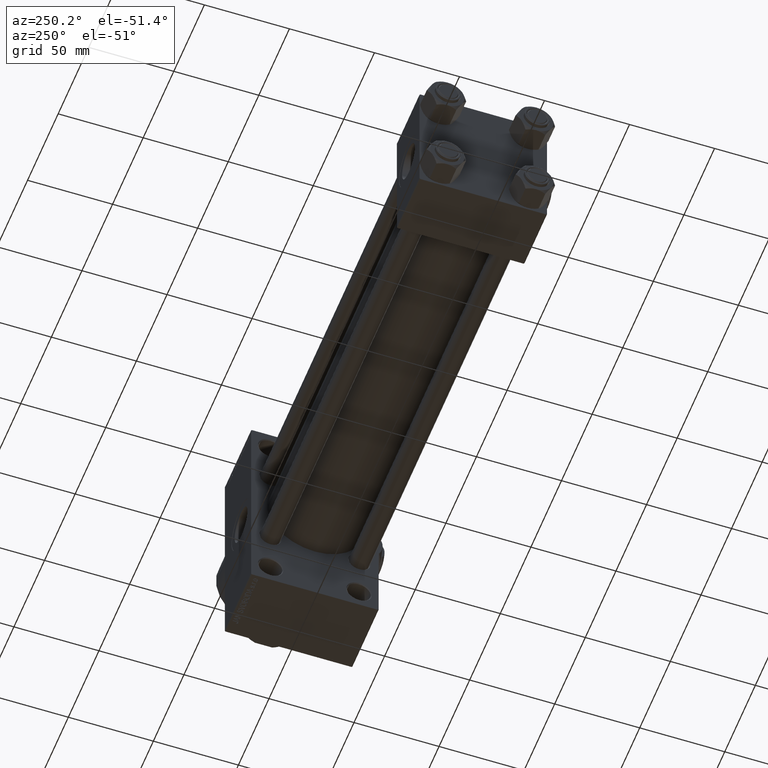
[diagram: clean part render]
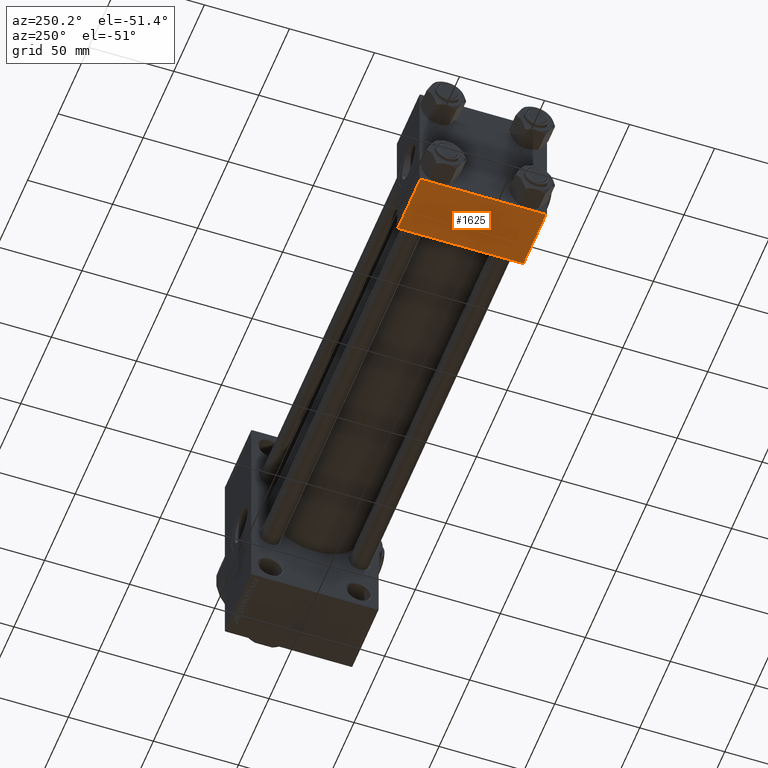
[diagram: same view with one face highlighted and labeled with its STEP entity id]
A machine part, auxiliary view. The second image highlights one B-rep face of the part: STEP entity #1625.
In plain terms, the highlighted planar face has unit normal (0, 0, -1).
Its self-contained STEP definition (entity closure, byte-faithful):
#1467 = DIRECTION ( 'NONE',  ( -1.000000000000000000, 0.000000000000000000, 0.000000000000000000 ) ) ;
#1611 = CARTESIAN_POINT ( 'NONE',  ( 37.00000000000000000, -37.00000000000002132, -37.50000000000000711 ) ) ;
#1625 = ADVANCED_FACE ( 'NONE', ( #41546 ), #21627, .T. ) ;
#2283 = CARTESIAN_POINT ( 'NONE',  ( 0.000000000000000000, -37.00000000000002132, -37.50000000000000711 ) ) ;
#2845 = LINE ( 'NONE', #14538, #40538 ) ;
#3152 = VERTEX_POINT ( 'NONE', #19880 ) ;
#6434 = ORIENTED_EDGE ( 'NONE', *, *, #45750, .T. ) ;
#9660 = ORIENTED_EDGE ( 'NONE', *, *, #24169, .T. ) ;
#10896 = DIRECTION ( 'NONE',  ( 0.000000000000000000, 1.000000000000000000, 9.251858538542972814E-17 ) ) ;
#12129 = VERTEX_POINT ( 'NONE', #1611 ) ;
#12333 = EDGE_LOOP ( 'NONE', ( #34928, #9660, #6434, #35766 ) ) ;
#12849 = LINE ( 'NONE', #48159, #13802 ) ;
#13802 = VECTOR ( 'NONE', #41182, 1000.000000000000000 ) ;
#13817 = DIRECTION ( 'NONE',  ( 0.000000000000000000, -1.000000000000000000, -9.251858538542972814E-17 ) ) ;
#14538 = CARTESIAN_POINT ( 'NONE',  ( 37.00000000000000000, 36.99999999999997868, -37.50000000000000000 ) ) ;
#15075 = VERTEX_POINT ( 'NONE', #2283 ) ;
#18046 = DIRECTION ( 'NONE',  ( 1.000000000000000000, 0.000000000000000000, 0.000000000000000000 ) ) ;
#19880 = CARTESIAN_POINT ( 'NONE',  ( 0.000000000000000000, 36.99999999999997868, -37.50000000000000000 ) ) ;
#21627 = PLANE ( 'NONE',  #22696 ) ;
#22656 = VERTEX_POINT ( 'NONE', #46110 ) ;
#22696 = AXIS2_PLACEMENT_3D ( 'NONE', #48517, #40549, #10896 ) ;
#24169 = EDGE_CURVE ( 'NONE', #3152, #22656, #2845, .T. ) ;
#34717 = VECTOR ( 'NONE', #13817, 1000.000000000000000 ) ;
#34928 = ORIENTED_EDGE ( 'NONE', *, *, #36835, .F. ) ;
#35766 = ORIENTED_EDGE ( 'NONE', *, *, #36471, .T. ) ;
#36471 = EDGE_CURVE ( 'NONE', #12129, #15075, #38614, .T. ) ;
#36835 = EDGE_CURVE ( 'NONE', #3152, #15075, #12849, .T. ) ;
#37008 = CARTESIAN_POINT ( 'NONE',  ( 37.00000000000000000, 37.49999999999999289, -37.50000000000000000 ) ) ;
#38377 = CARTESIAN_POINT ( 'NONE',  ( 0.000000000000000000, -37.00000000000002132, -37.50000000000000711 ) ) ;
#38614 = LINE ( 'NONE', #38377, #45599 ) ;
#40538 = VECTOR ( 'NONE', #18046, 1000.000000000000000 ) ;
#40549 = DIRECTION ( 'NONE',  ( 0.000000000000000000, 9.251858538542972814E-17, -1.000000000000000000 ) ) ;
#41182 = DIRECTION ( 'NONE',  ( 0.000000000000000000, -1.000000000000000000, -9.251858538542972814E-17 ) ) ;
#41546 = FACE_OUTER_BOUND ( 'NONE', #12333, .T. ) ;
#45599 = VECTOR ( 'NONE', #1467, 1000.000000000000000 ) ;
#45750 = EDGE_CURVE ( 'NONE', #22656, #12129, #47972, .T. ) ;
#46110 = CARTESIAN_POINT ( 'NONE',  ( 37.00000000000000000, 36.99999999999997868, -37.50000000000000000 ) ) ;
#47972 = LINE ( 'NONE', #37008, #34717 ) ;
#48159 = CARTESIAN_POINT ( 'NONE',  ( 0.000000000000000000, 37.49999999999999289, -37.50000000000000000 ) ) ;
#48517 = CARTESIAN_POINT ( 'NONE',  ( 37.00000000000000000, 37.49999999999999289, -37.50000000000000000 ) ) ;